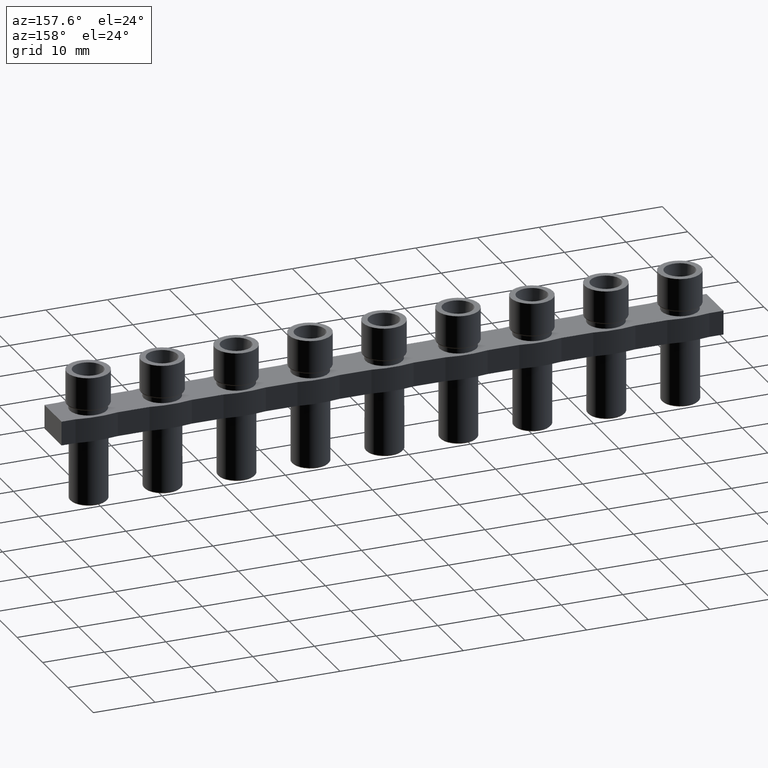
[diagram: clean part render]
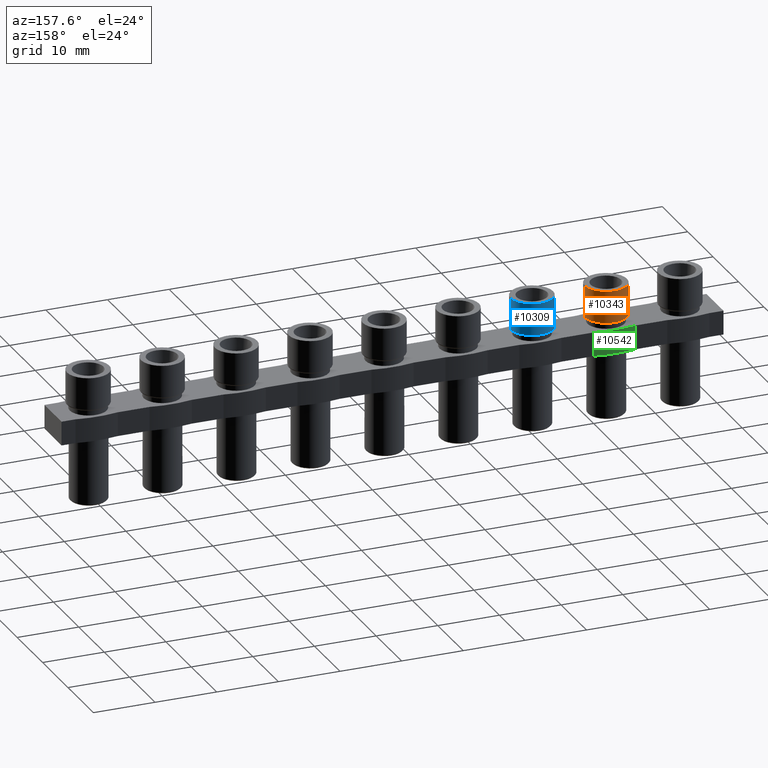
[diagram: same view with three faces highlighted in distinct colors, each labeled with its STEP entity id]
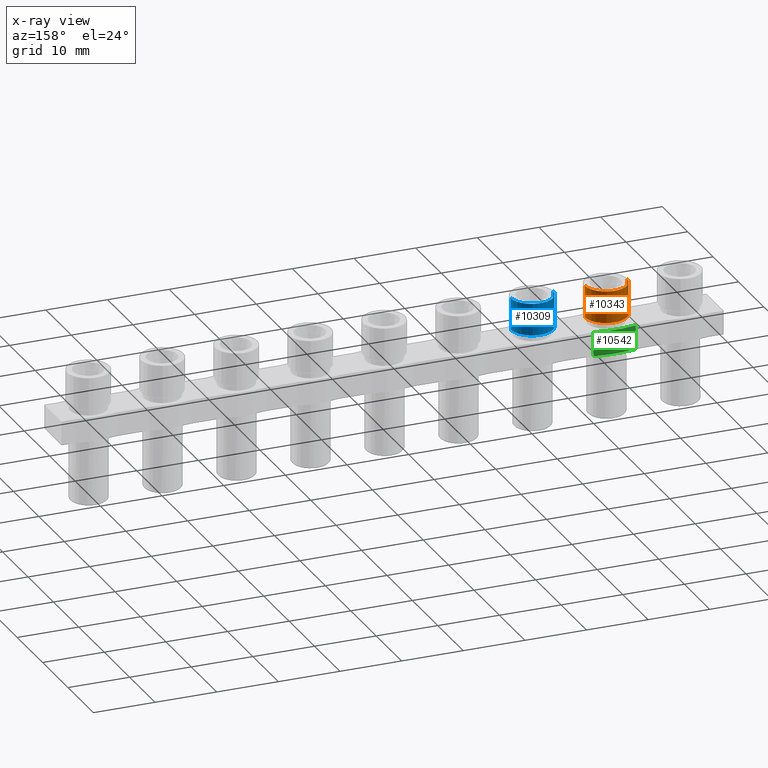
[diagram: x-ray of the same camera — body ghosted, the three highlighted faces saturated]
A machine part, auxiliary view with three faces highlighted in distinct colors.
The next image is the same camera in x-ray (body ghosted, the three faces saturated) — at least one of them is partly hidden behind the body in this view.
Their STEP definitions:

[orange] entity #10343 — the highlighted cylindrical surface (edge-blend (fillet) strip) has radius 3.425 mm, axis along (-0, -0, -1).
#1788 = FACE_OUTER_BOUND ( 'NONE', #3216, .T. ) ;
#1806 = DIRECTION ( 'NONE',  ( -0.0000000000000000000, -0.0000000000000000000, -1.000000000000000000 ) ) ;
#1819 = CARTESIAN_POINT ( 'NONE',  ( -72.00000000000001400, -1.373574879896260100E-014, 5.400000000000000400 ) ) ;
#1828 = DIRECTION ( 'NONE',  ( -1.000000000000000000, 0.0000000000000000000, 0.0000000000000000000 ) ) ;
#1841 = CYLINDRICAL_SURFACE ( 'NONE', #8600, 3.424999999999997600 ) ;
#1912 = CARTESIAN_POINT ( 'NONE',  ( -75.42500000000001100, -1.373574879896260100E-014, 5.400000000000000400 ) ) ;
#1979 = CARTESIAN_POINT ( 'NONE',  ( -68.57500000000001700, -1.331630727025463100E-014, 5.400000000000000400 ) ) ;
#3216 = EDGE_LOOP ( 'NONE', ( #8245, #8218, #8252, #8238 ) ) ;
#3902 = CARTESIAN_POINT ( 'NONE',  ( -75.42500000000001100, -1.373574879896260100E-014, 0.1999999999999996500 ) ) ;
#4064 = CARTESIAN_POINT ( 'NONE',  ( -68.57500000000001700, -1.331630727025463100E-014, 0.1999999999999996500 ) ) ;
#4213 = CIRCLE ( 'NONE', #4215, 3.424999999999997600 ) ;
#4215 = AXIS2_PLACEMENT_3D ( 'NONE', #11779, #11818, #11783 ) ;
#4296 = VECTOR ( 'NONE', #11961, 1000.000000000000000 ) ;
#4301 = CIRCLE ( 'NONE', #4339, 3.424999999999997600 ) ;
#4339 = AXIS2_PLACEMENT_3D ( 'NONE', #12028, #12017, #12004 ) ;
#4355 = VECTOR ( 'NONE', #12018, 1000.000000000000000 ) ;
#4909 = VERTEX_POINT ( 'NONE', #4064 ) ;
#4937 = VERTEX_POINT ( 'NONE', #3902 ) ;
#4972 = VERTEX_POINT ( 'NONE', #1912 ) ;
#5002 = VERTEX_POINT ( 'NONE', #1979 ) ;
#8218 = ORIENTED_EDGE ( 'NONE', *, *, #10989, .T. ) ;
#8238 = ORIENTED_EDGE ( 'NONE', *, *, #11009, .F. ) ;
#8245 = ORIENTED_EDGE ( 'NONE', *, *, #10936, .T. ) ;
#8252 = ORIENTED_EDGE ( 'NONE', *, *, #11014, .F. ) ;
#8600 = AXIS2_PLACEMENT_3D ( 'NONE', #1819, #1806, #1828 ) ;
#10343 = ADVANCED_FACE ( 'NONE', ( #1788 ), #1841, .T. ) ;
#10936 = EDGE_CURVE ( 'NONE', #4972, #5002, #4213, .T. ) ;
#10989 = EDGE_CURVE ( 'NONE', #5002, #4909, #11933, .T. ) ;
#11009 = EDGE_CURVE ( 'NONE', #4972, #4937, #12016, .T. ) ;
#11014 = EDGE_CURVE ( 'NONE', #4937, #4909, #4301, .T. ) ;
#11779 = CARTESIAN_POINT ( 'NONE',  ( -72.00000000000001400, -1.373574879896260100E-014, 5.400000000000000400 ) ) ;
#11783 = DIRECTION ( 'NONE',  ( -1.000000000000000000, 0.0000000000000000000, 0.0000000000000000000 ) ) ;
#11818 = DIRECTION ( 'NONE',  ( -0.0000000000000000000, -0.0000000000000000000, -1.000000000000000000 ) ) ;
#11933 = LINE ( 'NONE', #11945, #4296 ) ;
#11945 = CARTESIAN_POINT ( 'NONE',  ( -68.57500000000001700, -1.331630727025463100E-014, 5.400000000000000400 ) ) ;
#11961 = DIRECTION ( 'NONE',  ( -0.0000000000000000000, -0.0000000000000000000, -1.000000000000000000 ) ) ;
#11995 = CARTESIAN_POINT ( 'NONE',  ( -75.42500000000001100, -1.373574879896260100E-014, 5.400000000000000400 ) ) ;
#12004 = DIRECTION ( 'NONE',  ( 1.000000000000000000, 0.0000000000000000000, 0.0000000000000000000 ) ) ;
#12016 = LINE ( 'NONE', #11995, #4355 ) ;
#12017 = DIRECTION ( 'NONE',  ( -0.0000000000000000000, -0.0000000000000000000, -1.000000000000000000 ) ) ;
#12018 = DIRECTION ( 'NONE',  ( -0.0000000000000000000, -0.0000000000000000000, -1.000000000000000000 ) ) ;
#12028 = CARTESIAN_POINT ( 'NONE',  ( -72.00000000000001400, -1.373574879896260100E-014, 0.1999999999999996500 ) ) ;

[blue] entity #10309 — the highlighted cylindrical surface (edge-blend (fillet) strip) has radius 3.425 mm, axis along (-0, -0, -1).
#317 = CARTESIAN_POINT ( 'NONE',  ( -63.42499999999999700, -1.144645733246883200E-014, 5.400000000000000400 ) ) ;
#1267 = CYLINDRICAL_SURFACE ( 'NONE', #8638, 3.424999999999997600 ) ;
#1275 = FACE_OUTER_BOUND ( 'NONE', #3215, .T. ) ;
#1287 = CARTESIAN_POINT ( 'NONE',  ( -60.00000000000000000, -1.144645733246883200E-014, 5.400000000000000400 ) ) ;
#1303 = DIRECTION ( 'NONE',  ( -0.0000000000000000000, -0.0000000000000000000, -1.000000000000000000 ) ) ;
#1326 = DIRECTION ( 'NONE',  ( -1.000000000000000000, 0.0000000000000000000, 0.0000000000000000000 ) ) ;
#2004 = CARTESIAN_POINT ( 'NONE',  ( -56.57500000000000300, -1.102701580376086200E-014, 5.400000000000000400 ) ) ;
#3215 = EDGE_LOOP ( 'NONE', ( #8329, #8270, #8258, #8225 ) ) ;
#3274 = CARTESIAN_POINT ( 'NONE',  ( -63.42499999999999700, -1.144645733246883200E-014, 0.1999999999999996500 ) ) ;
#4076 = CARTESIAN_POINT ( 'NONE',  ( -56.57500000000000300, -1.102701580376086200E-014, 0.1999999999999996500 ) ) ;
#4268 = VECTOR ( 'NONE', #11822, 1000.000000000000000 ) ;
#4271 = VECTOR ( 'NONE', #11926, 1000.000000000000000 ) ;
#4309 = CIRCLE ( 'NONE', #4310, 3.424999999999997600 ) ;
#4310 = AXIS2_PLACEMENT_3D ( 'NONE', #12085, #12087, #12088 ) ;
#4382 = AXIS2_PLACEMENT_3D ( 'NONE', #12124, #12122, #12109 ) ;
#4421 = CIRCLE ( 'NONE', #4382, 3.424999999999997600 ) ;
#4914 = VERTEX_POINT ( 'NONE', #4076 ) ;
#4925 = VERTEX_POINT ( 'NONE', #3274 ) ;
#5028 = VERTEX_POINT ( 'NONE', #2004 ) ;
#5043 = VERTEX_POINT ( 'NONE', #317 ) ;
#8225 = ORIENTED_EDGE ( 'NONE', *, *, #10960, .F. ) ;
#8258 = ORIENTED_EDGE ( 'NONE', *, *, #11036, .F. ) ;
#8270 = ORIENTED_EDGE ( 'NONE', *, *, #10974, .T. ) ;
#8329 = ORIENTED_EDGE ( 'NONE', *, *, #11033, .T. ) ;
#8638 = AXIS2_PLACEMENT_3D ( 'NONE', #1287, #1303, #1326 ) ;
#10309 = ADVANCED_FACE ( 'NONE', ( #1275 ), #1267, .T. ) ;
#10960 = EDGE_CURVE ( 'NONE', #5043, #4925, #11843, .T. ) ;
#10974 = EDGE_CURVE ( 'NONE', #5028, #4914, #11895, .T. ) ;
#11033 = EDGE_CURVE ( 'NONE', #5043, #5028, #4309, .T. ) ;
#11036 = EDGE_CURVE ( 'NONE', #4925, #4914, #4421, .T. ) ;
#11822 = DIRECTION ( 'NONE',  ( -0.0000000000000000000, -0.0000000000000000000, -1.000000000000000000 ) ) ;
#11843 = LINE ( 'NONE', #11862, #4268 ) ;
#11862 = CARTESIAN_POINT ( 'NONE',  ( -63.42499999999999700, -1.144645733246883200E-014, 5.400000000000000400 ) ) ;
#11895 = LINE ( 'NONE', #11896, #4271 ) ;
#11896 = CARTESIAN_POINT ( 'NONE',  ( -56.57500000000000300, -1.102701580376086200E-014, 5.400000000000000400 ) ) ;
#11926 = DIRECTION ( 'NONE',  ( -0.0000000000000000000, -0.0000000000000000000, -1.000000000000000000 ) ) ;
#12085 = CARTESIAN_POINT ( 'NONE',  ( -60.00000000000000000, -1.144645733246883200E-014, 5.400000000000000400 ) ) ;
#12087 = DIRECTION ( 'NONE',  ( -0.0000000000000000000, -0.0000000000000000000, -1.000000000000000000 ) ) ;
#12088 = DIRECTION ( 'NONE',  ( -1.000000000000000000, 0.0000000000000000000, 0.0000000000000000000 ) ) ;
#12109 = DIRECTION ( 'NONE',  ( 1.000000000000000000, 0.0000000000000000000, 0.0000000000000000000 ) ) ;
#12122 = DIRECTION ( 'NONE',  ( -0.0000000000000000000, -0.0000000000000000000, -1.000000000000000000 ) ) ;
#12124 = CARTESIAN_POINT ( 'NONE',  ( -60.00000000000000000, -1.144645733246883200E-014, 0.1999999999999996500 ) ) ;

[green] entity #10542 — the highlighted cylindrical surface (partial cylindrical patch) has radius 16.95 mm, axis along (0, 0, 1).
#591 = CARTESIAN_POINT ( 'NONE',  ( -68.57326686186493700, 3.350000000000071600, -0.9000000000000014700 ) ) ;
#681 = CARTESIAN_POINT ( 'NONE',  ( -75.42673313813507700, 3.350000000000070700, -0.9000000000000014700 ) ) ;
#716 = CARTESIAN_POINT ( 'NONE',  ( -75.42673313813507700, 3.350000000000070700, -4.800000000000001600 ) ) ;
#814 = CARTESIAN_POINT ( 'NONE',  ( -72.00000000000001400, -13.25000000000035900, -0.9000000000000014700 ) ) ;
#862 = CARTESIAN_POINT ( 'NONE',  ( -68.57326686186493700, 3.350000000000070700, -4.800000000000001600 ) ) ;
#872 = DIRECTION ( 'NONE',  ( -0.0000000000000000000, -0.0000000000000000000, -1.000000000000000000 ) ) ;
#910 = DIRECTION ( 'NONE',  ( 1.000000000000000000, 0.0000000000000000000, 0.0000000000000000000 ) ) ;
#1697 = EDGE_CURVE ( 'NONE', #5227, #5392, #3486, .T. ) ;
#1895 = EDGE_CURVE ( 'NONE', #5322, #5298, #3851, .T. ) ;
#2080 = ORIENTED_EDGE ( 'NONE', *, *, #11381, .F. ) ;
#2091 = ORIENTED_EDGE ( 'NONE', *, *, #11211, .T. ) ;
#2099 = ORIENTED_EDGE ( 'NONE', *, *, #1697, .T. ) ;
#2813 = ORIENTED_EDGE ( 'NONE', *, *, #1895, .T. ) ;
#2843 = EDGE_LOOP ( 'NONE', ( #2813, #2091, #2099, #2080 ) ) ;
#3486 = LINE ( 'NONE', #3523, #10165 ) ;
#3520 = DIRECTION ( 'NONE',  ( -0.0000000000000000000, -0.0000000000000000000, -1.000000000000000000 ) ) ;
#3523 = CARTESIAN_POINT ( 'NONE',  ( -68.57326686186493700, 3.350000000000071600, -0.9000000000000014700 ) ) ;
#3840 = CARTESIAN_POINT ( 'NONE',  ( -75.42673313813507700, 3.350000000000070700, -4.800000000000001600 ) ) ;
#3842 = DIRECTION ( 'NONE',  ( 0.0000000000000000000, 0.0000000000000000000, 1.000000000000000000 ) ) ;
#3851 = LINE ( 'NONE', #3840, #8380 ) ;
#4628 = AXIS2_PLACEMENT_3D ( 'NONE', #814, #872, #910 ) ;
#4632 = CIRCLE ( 'NONE', #4628, 16.95000000000021600 ) ;
#4733 = CIRCLE ( 'NONE', #4734, 16.95000000000021600 ) ;
#4734 = AXIS2_PLACEMENT_3D ( 'NONE', #12417, #12389, #12413 ) ;
#5227 = VERTEX_POINT ( 'NONE', #591 ) ;
#5298 = VERTEX_POINT ( 'NONE', #681 ) ;
#5322 = VERTEX_POINT ( 'NONE', #716 ) ;
#5392 = VERTEX_POINT ( 'NONE', #862 ) ;
#6497 = DIRECTION ( 'NONE',  ( 1.000000000000000000, 0.0000000000000000000, 0.0000000000000000000 ) ) ;
#6498 = CARTESIAN_POINT ( 'NONE',  ( -72.00000000000001400, -13.25000000000035900, -9.302499305941093900 ) ) ;
#6524 = FACE_OUTER_BOUND ( 'NONE', #2843, .T. ) ;
#6525 = DIRECTION ( 'NONE',  ( 0.0000000000000000000, 0.0000000000000000000, 1.000000000000000000 ) ) ;
#6540 = CYLINDRICAL_SURFACE ( 'NONE', #9094, 16.95000000000021600 ) ;
#8380 = VECTOR ( 'NONE', #3842, 1000.000000000000000 ) ;
#9094 = AXIS2_PLACEMENT_3D ( 'NONE', #6498, #6525, #6497 ) ;
#10165 = VECTOR ( 'NONE', #3520, 1000.000000000000000 ) ;
#10542 = ADVANCED_FACE ( 'NONE', ( #6524 ), #6540, .T. ) ;
#11211 = EDGE_CURVE ( 'NONE', #5298, #5227, #4632, .T. ) ;
#11381 = EDGE_CURVE ( 'NONE', #5322, #5392, #4733, .T. ) ;
#12389 = DIRECTION ( 'NONE',  ( -0.0000000000000000000, -0.0000000000000000000, -1.000000000000000000 ) ) ;
#12413 = DIRECTION ( 'NONE',  ( 1.000000000000000000, 0.0000000000000000000, 0.0000000000000000000 ) ) ;
#12417 = CARTESIAN_POINT ( 'NONE',  ( -72.00000000000001400, -13.25000000000035900, -4.800000000000001600 ) ) ;